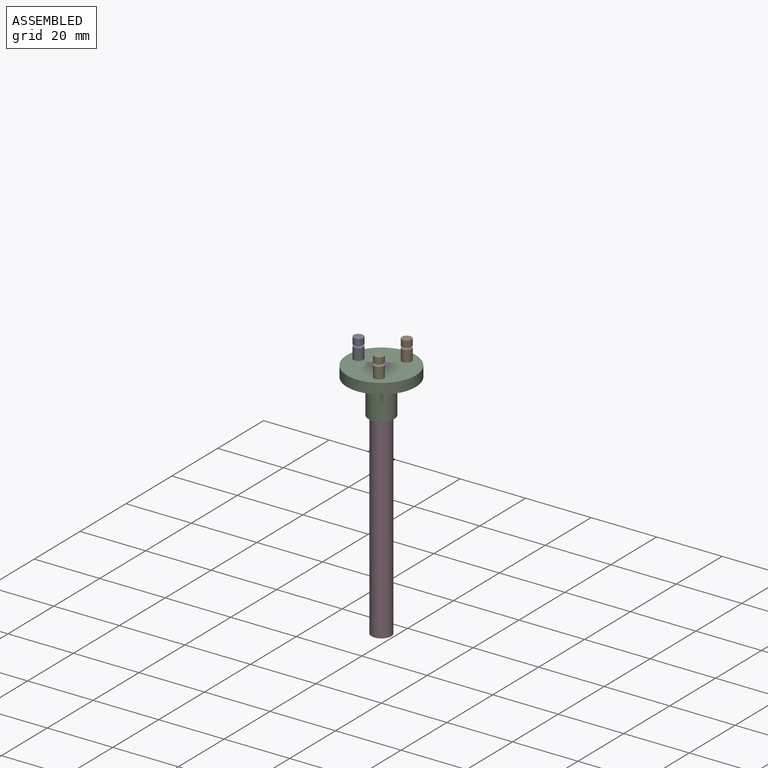
[diagram: assembled view]
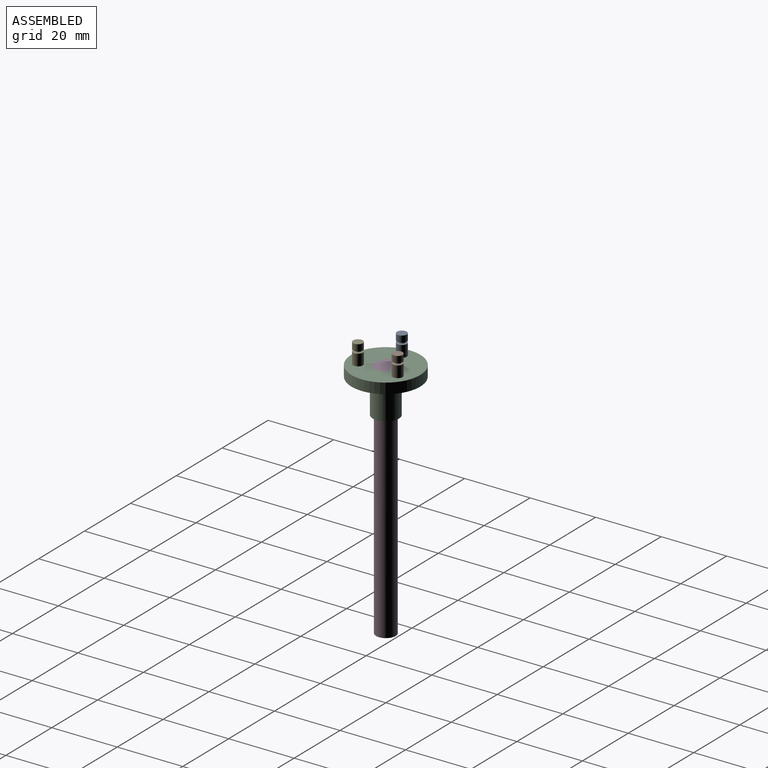
[diagram: assembled view, second angle]
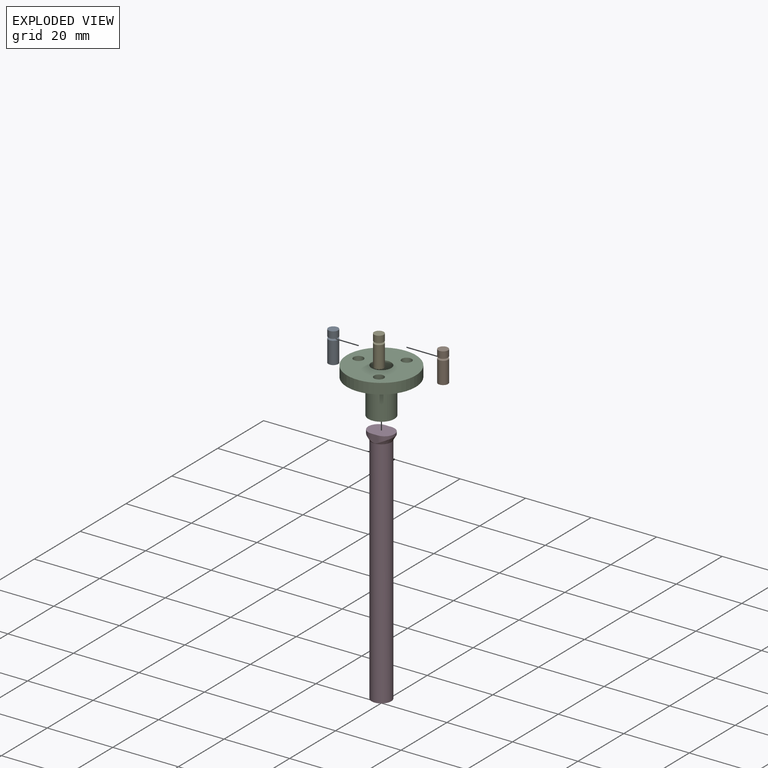
[diagram: exploded view]
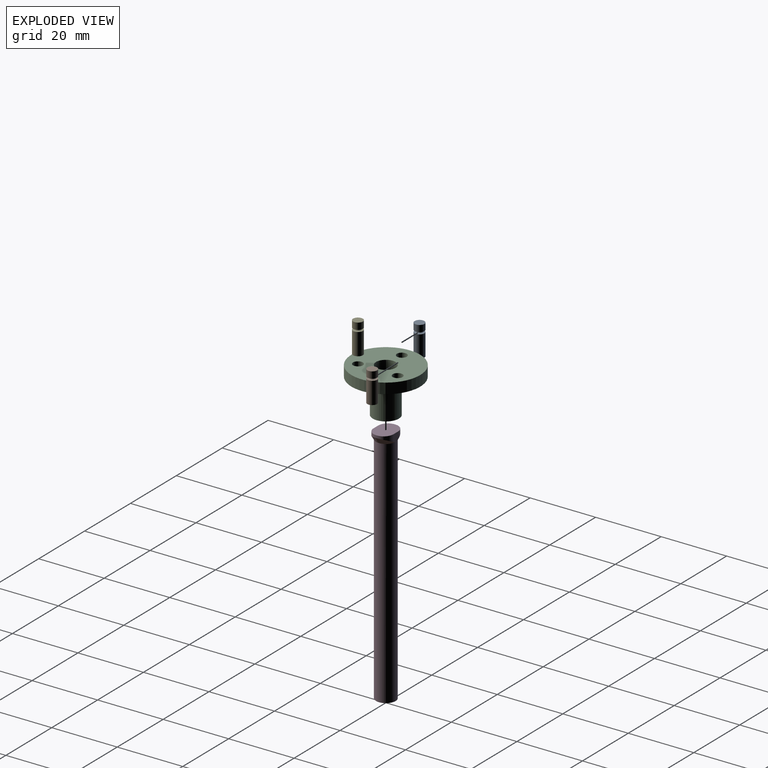
[diagram: exploded view, second angle]
ASSEMBLY  parts=5 mates=3
PART A: 7 faces, bbox 9.3x3x3 mm
  f0: cylinder r=1.5mm len=3mm, axis (1,0,0), area 18.8mm2, adj f1,f6
  f1: plane 3x3mm, normal (-1,0,0), area 3.3mm2, adj f0,f2
  f2: torus R=1.1mm, axis (1,0,0), area 5.4mm2, adj f1,f3
  f3: plane 3x3mm, normal (1,0,0), area 3.3mm2, adj f2,f4
  f4: cylinder r=1.5mm len=6.7mm, axis (1,0,0), area 63.1mm2, adj f3,f5
  f5: plane 3x3mm, normal (-1,0,0), area 7.1mm2, adj f4
  f6: plane 3x3mm, normal (1,0,0), area 7.1mm2, adj f0
PART B: same geometry as A
PART C: 11 faces, bbox 13.8x21x21 mm
  f0: cylinder r=1.5mm len=3.2mm, axis (-1,0,0), area 30.2mm2, adj f2,f8
  f1: cylinder r=1.5mm len=3.2mm, axis (-1,0,0), area 30.2mm2, adj f2,f8
  f2: plane 21x21mm, normal (-1,0,0), area 296.9mm2, adj f0,f1,f3,f9,f10
  f3: cylinder r=3mm len=13.75mm, axis (-1,0,0), area 259.2mm2, adj f2,f4
  f4: plane 8x8mm, normal (1,0,0), area 22mm2, adj f3,f5
  f5: cylinder r=4mm len=9.75mm, axis (-1,0,0), area 245mm2, adj f4,f6
  f6: plane 10x10mm, normal (1,0,0), area 28.3mm2, adj f5,f7
  f7: cylinder r=5mm len=10mm, axis (-1,0,0), area 25.1mm2, adj f6,f8
  f8: plane 21x21mm, normal (1,0,0), area 246.6mm2, adj f0,f1,f7,f9,f10
  f9: cylinder r=10.5mm len=21mm, axis (-1,0,0), area 211.1mm2, adj f2,f8
  f10: cylinder r=1.5mm len=3.2mm, axis (-1,0,0), area 30.2mm2, adj f2,f8
PART D: 12 faces, bbox 74x8x8 mm
  f0: cylinder r=4mm len=0.77mm, axis (1,0,0), area 0.6mm2, adj f2,f5,f8,f10
  f1: cylinder r=4mm len=0.77mm, axis (1,0,0), area 0.6mm2, adj f2,f5,f6,f9
  f2: plane 8x6.1mm, normal (-1,0,0), area 41.1mm2, adj f0,f1,f6,f7,f8,f9,f10,f11
  f3: plane 6x6mm, normal (1,0,0), area 28.3mm2, adj f4
  f4: cylinder r=3mm len=71.5mm, axis (1,0,0), area 1347.7mm2, adj f3,f5
  f5: cone r=4mm half-angle=30deg, axis (-1,0,0), area 25.6mm2, adj f0,f1,f4,f6,f7,f8,f9,f10
  f6: cylinder r=3mm len=2.98mm, axis (-1,0,0), area 5.5mm2, adj f1,f2,f5,f7
  f7: plane 2.42x2mm, normal (0,-1,0), area 4.6mm2, adj f2,f5,f6,f8
  f8: cylinder r=3mm len=2.98mm, axis (-1,0,0), area 5.5mm2, adj f0,f2,f5,f7
  f9: cylinder r=3mm len=2.98mm, axis (-1,0,0), area 5.5mm2, adj f1,f2,f5,f11
  f10: cylinder r=3mm len=2.98mm, axis (-1,0,0), area 5.5mm2, adj f0,f2,f5,f11
  f11: plane 2.42x2mm, normal (0,1,0), area 4.6mm2, adj f2,f5,f9,f10
PART E: same geometry as A
PLACE A rot(axis=(-0.65,-0.38,-0.65),138.6deg) t=(-7,0,-3.2)mm
PLACE B rot(axis=(0.65,-0.38,0.65),138.6deg) t=(3.5,6.06,-3.2)mm
PLACE C rot(axis=(0.71,0,-0.71),180deg) t=(0,0,0)mm
PLACE D rot(axis=(0,1,0),90deg) t=(0,0,0)mm
PLACE E rot(axis=(0,-1,0),90deg) t=(3.5,-6.06,-3.2)mm
MATE planar C.f1 <-> D.f0  axis (0,0,1) through (3.5,-6.06,0)mm
MATE revolute E.f0 <-> C.f1  axis (0,0,-1) through (3.5,-6.06,-3.2)mm
MATE slider C.f3 <-> D.f0  axis (0,0,1) through (0,0,0)mm
